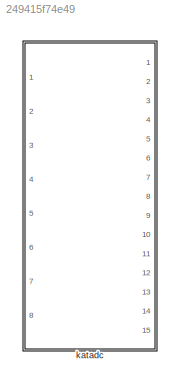
MODEL slx_249415f74e49
KIND model
CONFIG AbsTol = auto
CONFIG EnableMultiTasking = off
CONFIG FixedStep = auto
CONFIG MaxStep = auto
CONFIG MinStep = auto
CONFIG RelTol = 1e-3
CONFIG SampleTimeConstraint = Unconstrained
CONFIG Solver = VariableStepAuto
CONFIG SolverName = VariableStepAuto
CONFIG StartTime = 0.0
CONFIG StopTime = 10.0
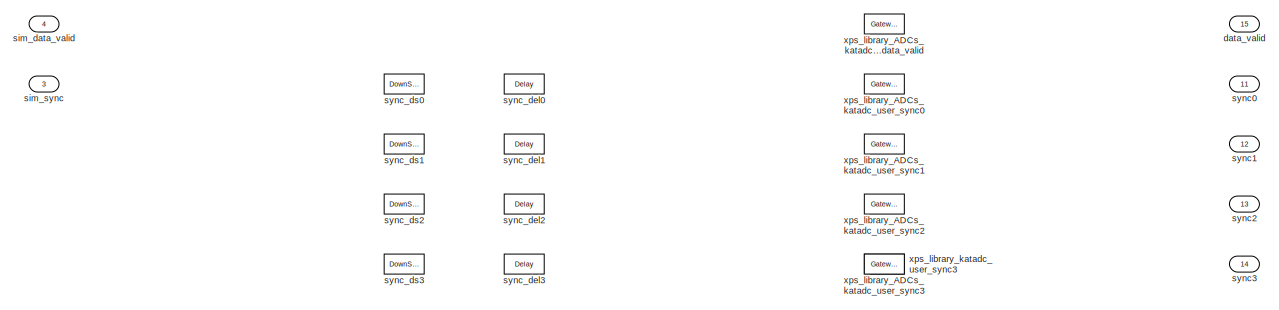
[diagram: katadc - part 1/5, full width, top band]
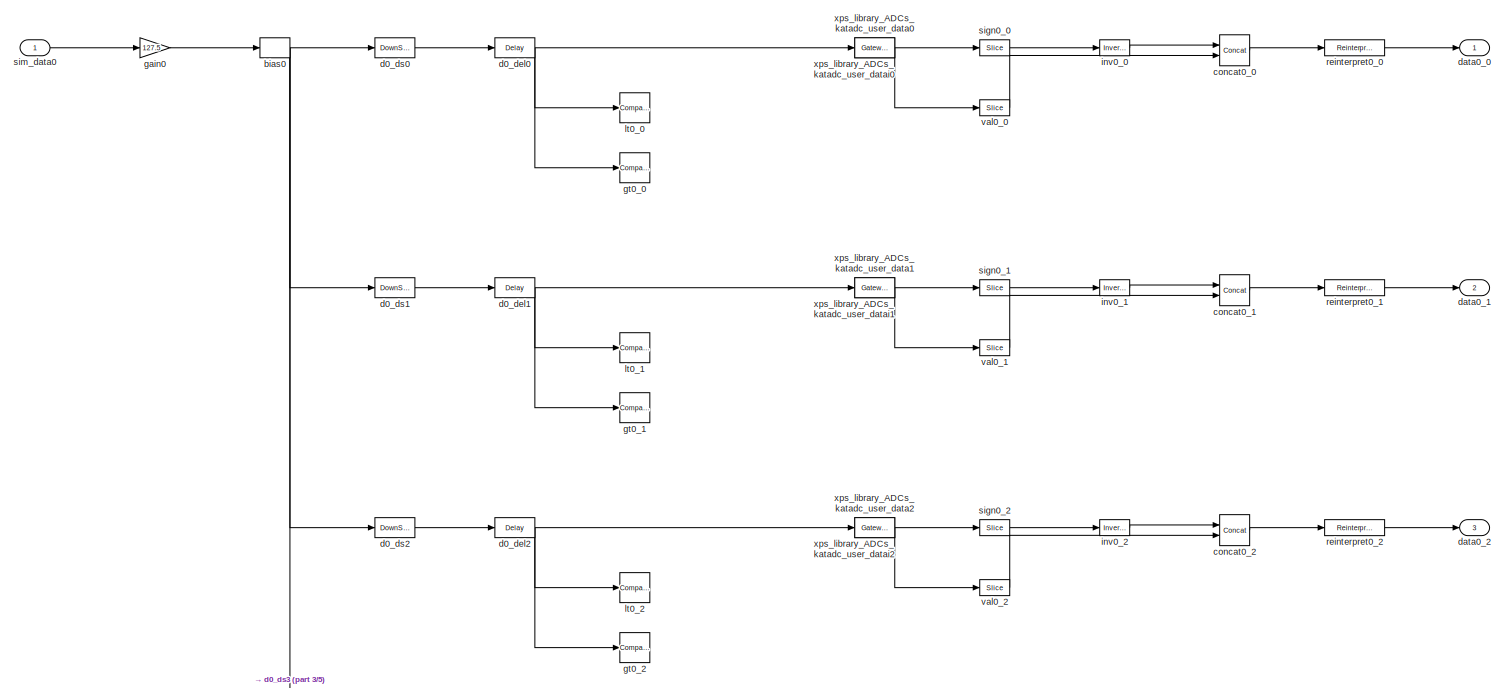
[diagram: katadc - part 2/5, full width, top band]
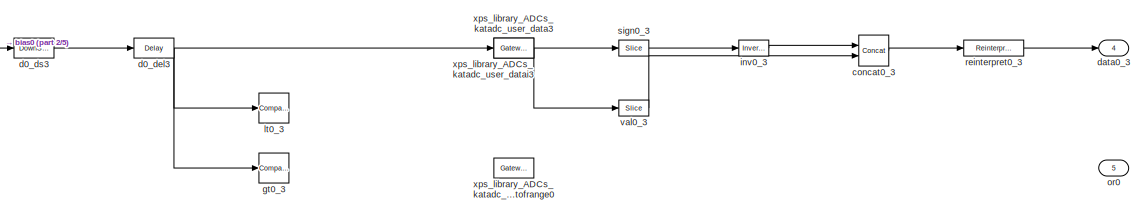
[diagram: katadc - part 3/5, full width, middle band]
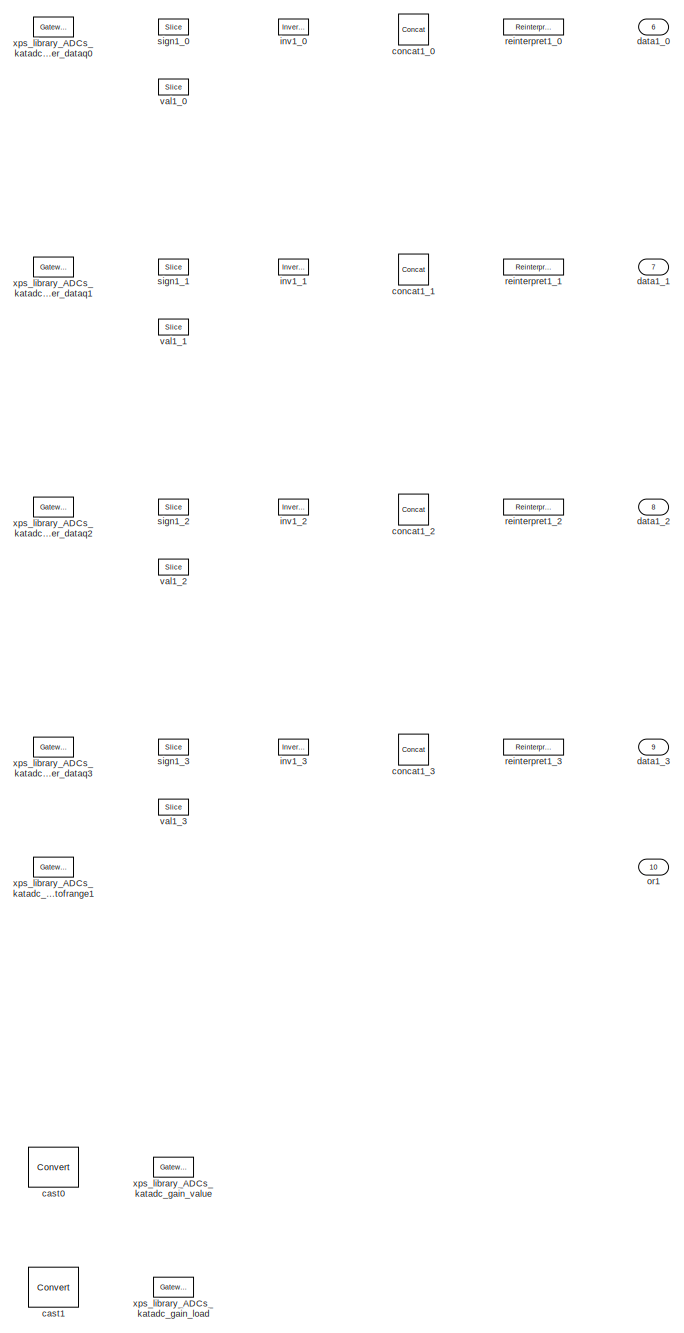
[diagram: katadc - part 4/5, bottom right region]
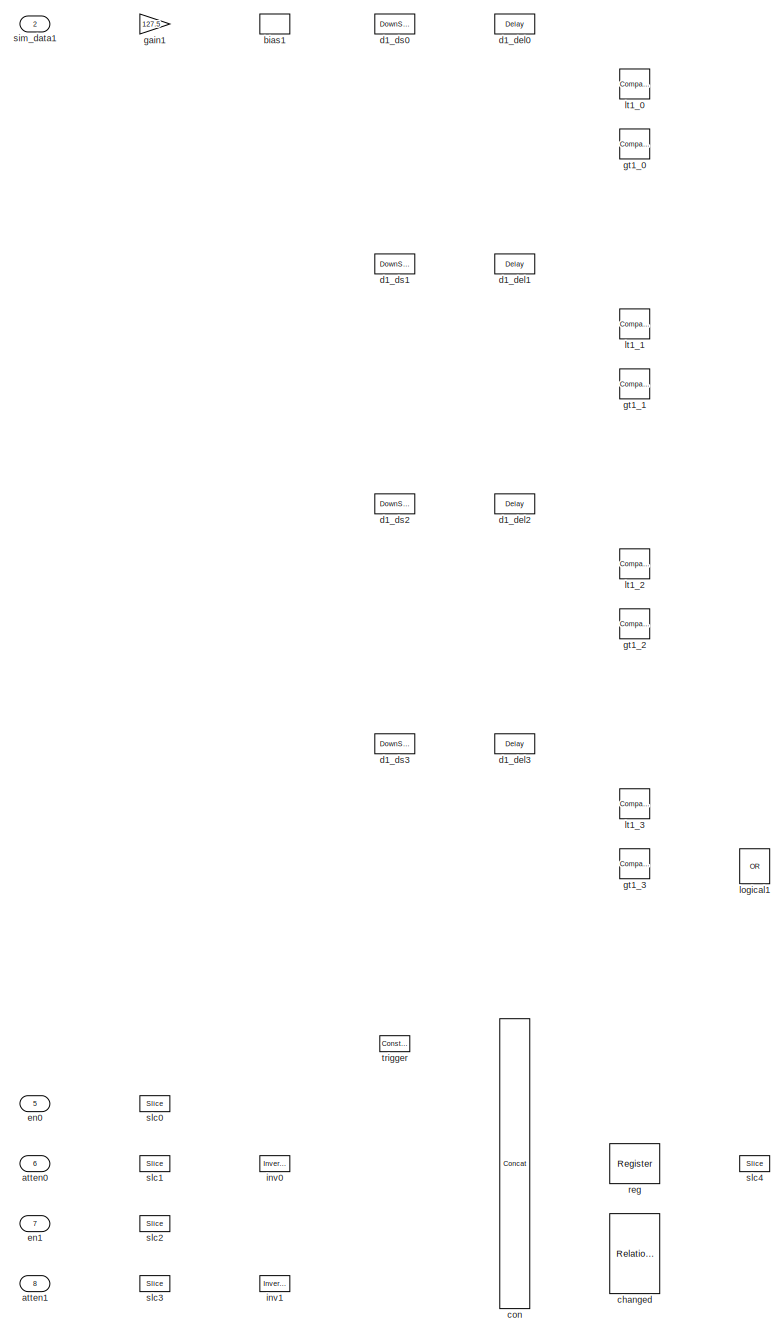
[diagram: katadc - part 5/5, bottom left region]
BLOCK [SubSystem] katadc
  Ports = [8, 15]
  RequestExecContextInheritance = off
  Tag = xps:katadc
  UserDataPersistent = on
  Variant = off
BLOCK [Inport] katadc/atten0
  IconDisplay = Port number
  Port = 6
BLOCK [Inport] katadc/atten1
  IconDisplay = Port number
  Port = 8
BLOCK [Bias] katadc/bias0
  Bias = 127.5
BLOCK [Bias] katadc/bias1
  Bias = 127.5
BLOCK [Reference] katadc/cast0  REF=xbsIndex_r4/Convert
  Ports = [1, 1]
  SourceBlock = xbsIndex_r4/Convert
  SourceType = Xilinx Type Converter Block
BLOCK [Reference] katadc/cast1  REF=xbsIndex_r4/Convert
  Ports = [1, 1]
  SourceBlock = xbsIndex_r4/Convert
  SourceType = Xilinx Type Converter Block
BLOCK [Reference] katadc/changed  REF=xbsIndex_r4/Relational
  Ports = [2, 1]
  SourceBlock = xbsIndex_r4/Relational
  SourceType = Xilinx Arithmetic Relational Operator Block
BLOCK [Reference] katadc/con  REF=xbsIndex_r4/Concat
  Ports = [5, 1]
  SourceBlock = xbsIndex_r4/Concat
  SourceType = Xilinx Bus Concatenator Block
BLOCK [Reference] katadc/concat0_0  REF=xbsIndex_r4/Concat
  Ports = [2, 1]
  SourceBlock = xbsIndex_r4/Concat
  SourceType = Xilinx Bus Concatenator Block
BLOCK [Reference] katadc/concat0_1  REF=xbsIndex_r4/Concat
  Ports = [2, 1]
  SourceBlock = xbsIndex_r4/Concat
  SourceType = Xilinx Bus Concatenator Block
BLOCK [Reference] katadc/concat0_2  REF=xbsIndex_r4/Concat
  Ports = [2, 1]
  SourceBlock = xbsIndex_r4/Concat
  SourceType = Xilinx Bus Concatenator Block
BLOCK [Reference] katadc/concat0_3  REF=xbsIndex_r4/Concat
  Ports = [2, 1]
  SourceBlock = xbsIndex_r4/Concat
  SourceType = Xilinx Bus Concatenator Block
BLOCK [Reference] katadc/concat1_0  REF=xbsIndex_r4/Concat
  Ports = [2, 1]
  SourceBlock = xbsIndex_r4/Concat
  SourceType = Xilinx Bus Concatenator Block
BLOCK [Reference] katadc/concat1_1  REF=xbsIndex_r4/Concat
  Ports = [2, 1]
  SourceBlock = xbsIndex_r4/Concat
  SourceType = Xilinx Bus Concatenator Block
BLOCK [Reference] katadc/concat1_2  REF=xbsIndex_r4/Concat
  Ports = [2, 1]
  SourceBlock = xbsIndex_r4/Concat
  SourceType = Xilinx Bus Concatenator Block
BLOCK [Reference] katadc/concat1_3  REF=xbsIndex_r4/Concat
  Ports = [2, 1]
  SourceBlock = xbsIndex_r4/Concat
  SourceType = Xilinx Bus Concatenator Block
BLOCK [Delay] katadc/d0_del0
  InputPortMap = u0
  InputProcessing = Inherited
  Ports = [1, 1]
BLOCK [Delay] katadc/d0_del1
  DelayLength = 1
  InputPortMap = u0
  InputProcessing = Inherited
  Ports = [1, 1]
BLOCK [Delay] katadc/d0_del2
  DelayLength = 1
  InputPortMap = u0
  InputProcessing = Inherited
  Ports = [1, 1]
BLOCK [Delay] katadc/d0_del3
  DelayLength = 1
  InputPortMap = u0
  InputProcessing = Inherited
  Ports = [1, 1]
BLOCK [DownSample] katadc/d0_ds0
  InputProcessing = Elements as channels (sample based)
  N = 4
  RateOptions = Allow multirate processing
BLOCK [DownSample] katadc/d0_ds1
  InputProcessing = Elements as channels (sample based)
  N = 4
  RateOptions = Allow multirate processing
  phase = 1
BLOCK [DownSample] katadc/d0_ds2
  InputProcessing = Elements as channels (sample based)
  N = 4
  RateOptions = Allow multirate processing
  phase = 2
BLOCK [DownSample] katadc/d0_ds3
  InputProcessing = Elements as channels (sample based)
  N = 4
  RateOptions = Allow multirate processing
  phase = 3
BLOCK [Delay] katadc/d1_del0
  InputPortMap = u0
  InputProcessing = Inherited
  Ports = [1, 1]
BLOCK [Delay] katadc/d1_del1
  DelayLength = 1
  InputPortMap = u0
  InputProcessing = Inherited
  Ports = [1, 1]
BLOCK [Delay] katadc/d1_del2
  DelayLength = 1
  InputPortMap = u0
  InputProcessing = Inherited
  Ports = [1, 1]
BLOCK [Delay] katadc/d1_del3
  DelayLength = 1
  InputPortMap = u0
  InputProcessing = Inherited
  Ports = [1, 1]
BLOCK [DownSample] katadc/d1_ds0
  InputProcessing = Elements as channels (sample based)
  N = 4
  RateOptions = Allow multirate processing
BLOCK [DownSample] katadc/d1_ds1
  InputProcessing = Elements as channels (sample based)
  N = 4
  RateOptions = Allow multirate processing
  phase = 1
BLOCK [DownSample] katadc/d1_ds2
  InputProcessing = Elements as channels (sample based)
  N = 4
  RateOptions = Allow multirate processing
  phase = 2
BLOCK [DownSample] katadc/d1_ds3
  InputProcessing = Elements as channels (sample based)
  N = 4
  RateOptions = Allow multirate processing
  phase = 3
BLOCK [Outport] katadc/data0_0
  IconDisplay = Port number
BLOCK [Outport] katadc/data0_1
  IconDisplay = Port number
  Port = 2
BLOCK [Outport] katadc/data0_2
  IconDisplay = Port number
  Port = 3
BLOCK [Outport] katadc/data0_3
  IconDisplay = Port number
  Port = 4
BLOCK [Outport] katadc/data1_0
  IconDisplay = Port number
  Port = 6
BLOCK [Outport] katadc/data1_1
  IconDisplay = Port number
  Port = 7
BLOCK [Outport] katadc/data1_2
  IconDisplay = Port number
  Port = 8
BLOCK [Outport] katadc/data1_3
  IconDisplay = Port number
  Port = 9
BLOCK [Outport] katadc/data_valid
  IconDisplay = Port number
  Port = 15
BLOCK [Inport] katadc/en0
  IconDisplay = Port number
  Port = 5
BLOCK [Inport] katadc/en1
  IconDisplay = Port number
  Port = 7
BLOCK [Gain] katadc/gain0
  Gain = 127.5
BLOCK [Gain] katadc/gain1
  Gain = 127.5
BLOCK [Reference] katadc/gt0_0  REF=simulink/Logic and Bit
Operations/Compare
To Constant
  Ports = [1, 1]
  SourceBlock = simulink/Logic and Bit\nOperations/Compare\nTo Constant
  SourceType = Compare To Constant
BLOCK [Reference] katadc/gt0_1  REF=simulink/Logic and Bit
Operations/Compare
To Constant
  Ports = [1, 1]
  SourceBlock = simulink/Logic and Bit\nOperations/Compare\nTo Constant
  SourceType = Compare To Constant
BLOCK [Reference] katadc/gt0_2  REF=simulink/Logic and Bit
Operations/Compare
To Constant
  Ports = [1, 1]
  SourceBlock = simulink/Logic and Bit\nOperations/Compare\nTo Constant
  SourceType = Compare To Constant
BLOCK [Reference] katadc/gt0_3  REF=simulink/Logic and Bit
Operations/Compare
To Constant
  Ports = [1, 1]
  SourceBlock = simulink/Logic and Bit\nOperations/Compare\nTo Constant
  SourceType = Compare To Constant
BLOCK [Reference] katadc/gt1_0  REF=simulink/Logic and Bit
Operations/Compare
To Constant
  Ports = [1, 1]
  SourceBlock = simulink/Logic and Bit\nOperations/Compare\nTo Constant
  SourceType = Compare To Constant
BLOCK [Reference] katadc/gt1_1  REF=simulink/Logic and Bit
Operations/Compare
To Constant
  Ports = [1, 1]
  SourceBlock = simulink/Logic and Bit\nOperations/Compare\nTo Constant
  SourceType = Compare To Constant
BLOCK [Reference] katadc/gt1_2  REF=simulink/Logic and Bit
Operations/Compare
To Constant
  Ports = [1, 1]
  SourceBlock = simulink/Logic and Bit\nOperations/Compare\nTo Constant
  SourceType = Compare To Constant
BLOCK [Reference] katadc/gt1_3  REF=simulink/Logic and Bit
Operations/Compare
To Constant
  Ports = [1, 1]
  SourceBlock = simulink/Logic and Bit\nOperations/Compare\nTo Constant
  SourceType = Compare To Constant
BLOCK [Reference] katadc/inv0  REF=xbsIndex_r4/Inverter
  Ports = [1, 1]
  SourceBlock = xbsIndex_r4/Inverter
  SourceType = Xilinx Inverter Block
BLOCK [Reference] katadc/inv0_0  REF=xbsIndex_r4/Inverter
  Ports = [1, 1]
  SourceBlock = xbsIndex_r4/Inverter
  SourceType = Xilinx Inverter Block
BLOCK [Reference] katadc/inv0_1  REF=xbsIndex_r4/Inverter
  Ports = [1, 1]
  SourceBlock = xbsIndex_r4/Inverter
  SourceType = Xilinx Inverter Block
BLOCK [Reference] katadc/inv0_2  REF=xbsIndex_r4/Inverter
  Ports = [1, 1]
  SourceBlock = xbsIndex_r4/Inverter
  SourceType = Xilinx Inverter Block
BLOCK [Reference] katadc/inv0_3  REF=xbsIndex_r4/Inverter
  Ports = [1, 1]
  SourceBlock = xbsIndex_r4/Inverter
  SourceType = Xilinx Inverter Block
BLOCK [Reference] katadc/inv1  REF=xbsIndex_r4/Inverter
  Ports = [1, 1]
  SourceBlock = xbsIndex_r4/Inverter
  SourceType = Xilinx Inverter Block
BLOCK [Reference] katadc/inv1_0  REF=xbsIndex_r4/Inverter
  Ports = [1, 1]
  SourceBlock = xbsIndex_r4/Inverter
  SourceType = Xilinx Inverter Block
BLOCK [Reference] katadc/inv1_1  REF=xbsIndex_r4/Inverter
  Ports = [1, 1]
  SourceBlock = xbsIndex_r4/Inverter
  SourceType = Xilinx Inverter Block
BLOCK [Reference] katadc/inv1_2  REF=xbsIndex_r4/Inverter
  Ports = [1, 1]
  SourceBlock = xbsIndex_r4/Inverter
  SourceType = Xilinx Inverter Block
BLOCK [Reference] katadc/inv1_3  REF=xbsIndex_r4/Inverter
  Ports = [1, 1]
  SourceBlock = xbsIndex_r4/Inverter
  SourceType = Xilinx Inverter Block
BLOCK [Logic] katadc/logical1
  Inputs = 8
  Operator = OR
  Ports = [8, 1]
BLOCK [Reference] katadc/lt0_0  REF=simulink/Logic and Bit
Operations/Compare
To Constant
  Ports = [1, 1]
  SourceBlock = simulink/Logic and Bit\nOperations/Compare\nTo Constant
  SourceType = Compare To Constant
BLOCK [Reference] katadc/lt0_1  REF=simulink/Logic and Bit
Operations/Compare
To Constant
  Ports = [1, 1]
  SourceBlock = simulink/Logic and Bit\nOperations/Compare\nTo Constant
  SourceType = Compare To Constant
BLOCK [Reference] katadc/lt0_2  REF=simulink/Logic and Bit
Operations/Compare
To Constant
  Ports = [1, 1]
  SourceBlock = simulink/Logic and Bit\nOperations/Compare\nTo Constant
  SourceType = Compare To Constant
BLOCK [Reference] katadc/lt0_3  REF=simulink/Logic and Bit
Operations/Compare
To Constant
  Ports = [1, 1]
  SourceBlock = simulink/Logic and Bit\nOperations/Compare\nTo Constant
  SourceType = Compare To Constant
BLOCK [Reference] katadc/lt1_0  REF=simulink/Logic and Bit
Operations/Compare
To Constant
  Ports = [1, 1]
  SourceBlock = simulink/Logic and Bit\nOperations/Compare\nTo Constant
  SourceType = Compare To Constant
BLOCK [Reference] katadc/lt1_1  REF=simulink/Logic and Bit
Operations/Compare
To Constant
  Ports = [1, 1]
  SourceBlock = simulink/Logic and Bit\nOperations/Compare\nTo Constant
  SourceType = Compare To Constant
BLOCK [Reference] katadc/lt1_2  REF=simulink/Logic and Bit
Operations/Compare
To Constant
  Ports = [1, 1]
  SourceBlock = simulink/Logic and Bit\nOperations/Compare\nTo Constant
  SourceType = Compare To Constant
BLOCK [Reference] katadc/lt1_3  REF=simulink/Logic and Bit
Operations/Compare
To Constant
  Ports = [1, 1]
  SourceBlock = simulink/Logic and Bit\nOperations/Compare\nTo Constant
  SourceType = Compare To Constant
BLOCK [Outport] katadc/or0
  IconDisplay = Port number
  Port = 5
BLOCK [Outport] katadc/or1
  IconDisplay = Port number
  Port = 10
BLOCK [Reference] katadc/reg  REF=xbsIndex_r4/Register
  Ports = [1, 1]
  SourceBlock = xbsIndex_r4/Register
  SourceType = Xilinx Register Block
BLOCK [Reference] katadc/reinterpret0_0  REF=xbsIndex_r4/Reinterpret
  Ports = [1, 1]
  SourceBlock = xbsIndex_r4/Reinterpret
  SourceType = Xilinx Type Reinterpreter Block
BLOCK [Reference] katadc/reinterpret0_1  REF=xbsIndex_r4/Reinterpret
  Ports = [1, 1]
  SourceBlock = xbsIndex_r4/Reinterpret
  SourceType = Xilinx Type Reinterpreter Block
BLOCK [Reference] katadc/reinterpret0_2  REF=xbsIndex_r4/Reinterpret
  Ports = [1, 1]
  SourceBlock = xbsIndex_r4/Reinterpret
  SourceType = Xilinx Type Reinterpreter Block
BLOCK [Reference] katadc/reinterpret0_3  REF=xbsIndex_r4/Reinterpret
  Ports = [1, 1]
  SourceBlock = xbsIndex_r4/Reinterpret
  SourceType = Xilinx Type Reinterpreter Block
BLOCK [Reference] katadc/reinterpret1_0  REF=xbsIndex_r4/Reinterpret
  Ports = [1, 1]
  SourceBlock = xbsIndex_r4/Reinterpret
  SourceType = Xilinx Type Reinterpreter Block
BLOCK [Reference] katadc/reinterpret1_1  REF=xbsIndex_r4/Reinterpret
  Ports = [1, 1]
  SourceBlock = xbsIndex_r4/Reinterpret
  SourceType = Xilinx Type Reinterpreter Block
BLOCK [Reference] katadc/reinterpret1_2  REF=xbsIndex_r4/Reinterpret
  Ports = [1, 1]
  SourceBlock = xbsIndex_r4/Reinterpret
  SourceType = Xilinx Type Reinterpreter Block
BLOCK [Reference] katadc/reinterpret1_3  REF=xbsIndex_r4/Reinterpret
  Ports = [1, 1]
  SourceBlock = xbsIndex_r4/Reinterpret
  SourceType = Xilinx Type Reinterpreter Block
BLOCK [Reference] katadc/sign0_0  REF=xbsIndex_r4/Slice
  Ports = [1, 1]
  SourceBlock = xbsIndex_r4/Slice
  SourceType = Xilinx Bit Slice Extractor Block
BLOCK [Reference] katadc/sign0_1  REF=xbsIndex_r4/Slice
  Ports = [1, 1]
  SourceBlock = xbsIndex_r4/Slice
  SourceType = Xilinx Bit Slice Extractor Block
BLOCK [Reference] katadc/sign0_2  REF=xbsIndex_r4/Slice
  Ports = [1, 1]
  SourceBlock = xbsIndex_r4/Slice
  SourceType = Xilinx Bit Slice Extractor Block
BLOCK [Reference] katadc/sign0_3  REF=xbsIndex_r4/Slice
  Ports = [1, 1]
  SourceBlock = xbsIndex_r4/Slice
  SourceType = Xilinx Bit Slice Extractor Block
BLOCK [Reference] katadc/sign1_0  REF=xbsIndex_r4/Slice
  Ports = [1, 1]
  SourceBlock = xbsIndex_r4/Slice
  SourceType = Xilinx Bit Slice Extractor Block
BLOCK [Reference] katadc/sign1_1  REF=xbsIndex_r4/Slice
  Ports = [1, 1]
  SourceBlock = xbsIndex_r4/Slice
  SourceType = Xilinx Bit Slice Extractor Block
BLOCK [Reference] katadc/sign1_2  REF=xbsIndex_r4/Slice
  Ports = [1, 1]
  SourceBlock = xbsIndex_r4/Slice
  SourceType = Xilinx Bit Slice Extractor Block
BLOCK [Reference] katadc/sign1_3  REF=xbsIndex_r4/Slice
  Ports = [1, 1]
  SourceBlock = xbsIndex_r4/Slice
  SourceType = Xilinx Bit Slice Extractor Block
BLOCK [Inport] katadc/sim_data0
  IconDisplay = Port number
BLOCK [Inport] katadc/sim_data1
  IconDisplay = Port number
  Port = 2
BLOCK [Inport] katadc/sim_data_valid
  IconDisplay = Port number
  Port = 4
BLOCK [Inport] katadc/sim_sync
  IconDisplay = Port number
  Port = 3
BLOCK [Reference] katadc/slc0  REF=xbsIndex_r4/Slice
  Ports = [1, 1]
  SourceBlock = xbsIndex_r4/Slice
  SourceType = Xilinx Bit Slice Extractor Block
BLOCK [Reference] katadc/slc1  REF=xbsIndex_r4/Slice
  Ports = [1, 1]
  SourceBlock = xbsIndex_r4/Slice
  SourceType = Xilinx Bit Slice Extractor Block
BLOCK [Reference] katadc/slc2  REF=xbsIndex_r4/Slice
  Ports = [1, 1]
  SourceBlock = xbsIndex_r4/Slice
  SourceType = Xilinx Bit Slice Extractor Block
BLOCK [Reference] katadc/slc3  REF=xbsIndex_r4/Slice
  Ports = [1, 1]
  SourceBlock = xbsIndex_r4/Slice
  SourceType = Xilinx Bit Slice Extractor Block
BLOCK [Reference] katadc/slc4  REF=xbsIndex_r4/Slice
  Ports = [1, 1]
  SourceBlock = xbsIndex_r4/Slice
  SourceType = Xilinx Bit Slice Extractor Block
BLOCK [Outport] katadc/sync0
  IconDisplay = Port number
  Port = 11
BLOCK [Outport] katadc/sync1
  IconDisplay = Port number
  Port = 12
BLOCK [Outport] katadc/sync2
  IconDisplay = Port number
  Port = 13
BLOCK [Outport] katadc/sync3
  IconDisplay = Port number
  Port = 14
BLOCK [Delay] katadc/sync_del0
  InputPortMap = u0
  InputProcessing = Inherited
  Ports = [1, 1]
BLOCK [Delay] katadc/sync_del1
  DelayLength = 1
  InputPortMap = u0
  InputProcessing = Inherited
  Ports = [1, 1]
BLOCK [Delay] katadc/sync_del2
  DelayLength = 1
  InputPortMap = u0
  InputProcessing = Inherited
  Ports = [1, 1]
BLOCK [Delay] katadc/sync_del3
  DelayLength = 1
  InputPortMap = u0
  InputProcessing = Inherited
  Ports = [1, 1]
BLOCK [DownSample] katadc/sync_ds0
  InputProcessing = Elements as channels (sample based)
  N = 4
  RateOptions = Allow multirate processing
BLOCK [DownSample] katadc/sync_ds1
  InputProcessing = Elements as channels (sample based)
  N = 4
  RateOptions = Allow multirate processing
  phase = 1
BLOCK [DownSample] katadc/sync_ds2
  InputProcessing = Elements as channels (sample based)
  N = 4
  RateOptions = Allow multirate processing
  phase = 2
BLOCK [DownSample] katadc/sync_ds3
  InputProcessing = Elements as channels (sample based)
  N = 4
  RateOptions = Allow multirate processing
  phase = 3
BLOCK [Reference] katadc/trigger  REF=xbsIndex_r4/Constant
  Ports = [0, 1]
  SourceBlock = xbsIndex_r4/Constant
  SourceType = Xilinx Constant Block Block
BLOCK [Reference] katadc/val0_0  REF=xbsIndex_r4/Slice
  Ports = [1, 1]
  SourceBlock = xbsIndex_r4/Slice
  SourceType = Xilinx Bit Slice Extractor Block
BLOCK [Reference] katadc/val0_1  REF=xbsIndex_r4/Slice
  Ports = [1, 1]
  SourceBlock = xbsIndex_r4/Slice
  SourceType = Xilinx Bit Slice Extractor Block
BLOCK [Reference] katadc/val0_2  REF=xbsIndex_r4/Slice
  Ports = [1, 1]
  SourceBlock = xbsIndex_r4/Slice
  SourceType = Xilinx Bit Slice Extractor Block
BLOCK [Reference] katadc/val0_3  REF=xbsIndex_r4/Slice
  Ports = [1, 1]
  SourceBlock = xbsIndex_r4/Slice
  SourceType = Xilinx Bit Slice Extractor Block
BLOCK [Reference] katadc/val1_0  REF=xbsIndex_r4/Slice
  Ports = [1, 1]
  SourceBlock = xbsIndex_r4/Slice
  SourceType = Xilinx Bit Slice Extractor Block
BLOCK [Reference] katadc/val1_1  REF=xbsIndex_r4/Slice
  Ports = [1, 1]
  SourceBlock = xbsIndex_r4/Slice
  SourceType = Xilinx Bit Slice Extractor Block
BLOCK [Reference] katadc/val1_2  REF=xbsIndex_r4/Slice
  Ports = [1, 1]
  SourceBlock = xbsIndex_r4/Slice
  SourceType = Xilinx Bit Slice Extractor Block
BLOCK [Reference] katadc/val1_3  REF=xbsIndex_r4/Slice
  Ports = [1, 1]
  SourceBlock = xbsIndex_r4/Slice
  SourceType = Xilinx Bit Slice Extractor Block
BLOCK [Reference] katadc/xps_library_ADCs_katadc_gain_load  REF=xbsIndex_r4/Gateway Out
  Ports = [1, 1]
  SourceBlock = xbsIndex_r4/Gateway Out
  SourceType = Xilinx Gateway Out Block
BLOCK [Reference] katadc/xps_library_ADCs_katadc_gain_value  REF=xbsIndex_r4/Gateway Out
  Ports = [1, 1]
  SourceBlock = xbsIndex_r4/Gateway Out
  SourceType = Xilinx Gateway Out Block
BLOCK [Reference] katadc/xps_library_ADCs_katadc_user_data0  REF=xbsIndex_r4/Gateway In
  Ports = [1, 1]
  SourceBlock = xbsIndex_r4/Gateway In
  SourceType = Xilinx Gateway In Block
BLOCK [Reference] katadc/xps_library_ADCs_katadc_user_data1  REF=xbsIndex_r4/Gateway In
  Ports = [1, 1]
  SourceBlock = xbsIndex_r4/Gateway In
  SourceType = Xilinx Gateway In Block
BLOCK [Reference] katadc/xps_library_ADCs_katadc_user_data2  REF=xbsIndex_r4/Gateway In
  Ports = [1, 1]
  SourceBlock = xbsIndex_r4/Gateway In
  SourceType = Xilinx Gateway In Block
BLOCK [Reference] katadc/xps_library_ADCs_katadc_user_data3  REF=xbsIndex_r4/Gateway In
  Ports = [1, 1]
  SourceBlock = xbsIndex_r4/Gateway In
  SourceType = Xilinx Gateway In Block
BLOCK [Reference] katadc/xps_library_ADCs_katadc_user_data_valid  REF=xbsIndex_r4/Gateway In
  Ports = [1, 1]
  SourceBlock = xbsIndex_r4/Gateway In
  SourceType = Xilinx Gateway In Block
BLOCK [Reference] katadc/xps_library_ADCs_katadc_user_datai0  REF=xbsIndex_r4/Gateway In
  Ports = [1, 1]
  SourceBlock = xbsIndex_r4/Gateway In
  SourceType = Xilinx Gateway In Block
BLOCK [Reference] katadc/xps_library_ADCs_katadc_user_datai1  REF=xbsIndex_r4/Gateway In
  Ports = [1, 1]
  SourceBlock = xbsIndex_r4/Gateway In
  SourceType = Xilinx Gateway In Block
BLOCK [Reference] katadc/xps_library_ADCs_katadc_user_datai2  REF=xbsIndex_r4/Gateway In
  Ports = [1, 1]
  SourceBlock = xbsIndex_r4/Gateway In
  SourceType = Xilinx Gateway In Block
BLOCK [Reference] katadc/xps_library_ADCs_katadc_user_datai3  REF=xbsIndex_r4/Gateway In
  Ports = [1, 1]
  SourceBlock = xbsIndex_r4/Gateway In
  SourceType = Xilinx Gateway In Block
BLOCK [Reference] katadc/xps_library_ADCs_katadc_user_dataq0  REF=xbsIndex_r4/Gateway In
  Ports = [1, 1]
  SourceBlock = xbsIndex_r4/Gateway In
  SourceType = Xilinx Gateway In Block
BLOCK [Reference] katadc/xps_library_ADCs_katadc_user_dataq1  REF=xbsIndex_r4/Gateway In
  Ports = [1, 1]
  SourceBlock = xbsIndex_r4/Gateway In
  SourceType = Xilinx Gateway In Block
BLOCK [Reference] katadc/xps_library_ADCs_katadc_user_dataq2  REF=xbsIndex_r4/Gateway In
  Ports = [1, 1]
  SourceBlock = xbsIndex_r4/Gateway In
  SourceType = Xilinx Gateway In Block
BLOCK [Reference] katadc/xps_library_ADCs_katadc_user_dataq3  REF=xbsIndex_r4/Gateway In
  Ports = [1, 1]
  SourceBlock = xbsIndex_r4/Gateway In
  SourceType = Xilinx Gateway In Block
BLOCK [Reference] katadc/xps_library_ADCs_katadc_user_outofrange0  REF=xbsIndex_r4/Gateway In
  Ports = [1, 1]
  SourceBlock = xbsIndex_r4/Gateway In
  SourceType = Xilinx Gateway In Block
BLOCK [Reference] katadc/xps_library_ADCs_katadc_user_outofrange1  REF=xbsIndex_r4/Gateway In
  Ports = [1, 1]
  SourceBlock = xbsIndex_r4/Gateway In
  SourceType = Xilinx Gateway In Block
BLOCK [Reference] katadc/xps_library_ADCs_katadc_user_sync0  REF=xbsIndex_r4/Gateway In
  Ports = [1, 1]
  SourceBlock = xbsIndex_r4/Gateway In
  SourceType = Xilinx Gateway In Block
BLOCK [Reference] katadc/xps_library_ADCs_katadc_user_sync1  REF=xbsIndex_r4/Gateway In
  Ports = [1, 1]
  SourceBlock = xbsIndex_r4/Gateway In
  SourceType = Xilinx Gateway In Block
BLOCK [Reference] katadc/xps_library_ADCs_katadc_user_sync2  REF=xbsIndex_r4/Gateway In
  Ports = [1, 1]
  SourceBlock = xbsIndex_r4/Gateway In
  SourceType = Xilinx Gateway In Block
BLOCK [Reference] katadc/xps_library_ADCs_katadc_user_sync3  REF=xbsIndex_r4/Gateway In
  Ports = [1, 1]
  SourceBlock = xbsIndex_r4/Gateway In
  SourceType = Xilinx Gateway In Block
BLOCK [Reference] katadc/xps_library_katadc_user_sync3  REF=xbsIndex_r4/Gateway In
  Ports = [1, 1]
  SourceBlock = xbsIndex_r4/Gateway In
  SourceType = Xilinx Gateway In Block
NET katadc/bias0:1 -> katadc/d0_ds0:1, katadc/d0_ds1:1, katadc/d0_ds2:1, katadc/d0_ds3:1
LINE katadc/concat0_0:1 -> katadc/reinterpret0_0:1
LINE katadc/concat0_1:1 -> katadc/reinterpret0_1:1
LINE katadc/concat0_2:1 -> katadc/reinterpret0_2:1
LINE katadc/concat0_3:1 -> katadc/reinterpret0_3:1
NET katadc/d0_del0:1 -> katadc/gt0_0:1, katadc/lt0_0:1, katadc/xps_library_ADCs_katadc_user_data0:1
NET katadc/d0_del1:1 -> katadc/gt0_1:1, katadc/lt0_1:1, katadc/xps_library_ADCs_katadc_user_data1:1
NET katadc/d0_del2:1 -> katadc/gt0_2:1, katadc/lt0_2:1, katadc/xps_library_ADCs_katadc_user_data2:1
NET katadc/d0_del3:1 -> katadc/gt0_3:1, katadc/lt0_3:1, katadc/xps_library_ADCs_katadc_user_data3:1
LINE katadc/d0_ds0:1 -> katadc/d0_del0:1
LINE katadc/d0_ds1:1 -> katadc/d0_del1:1
LINE katadc/d0_ds2:1 -> katadc/d0_del2:1
LINE katadc/d0_ds3:1 -> katadc/d0_del3:1
LINE katadc/gain0:1 -> katadc/bias0:1
LINE katadc/inv0_0:1 -> katadc/concat0_0:1
LINE katadc/inv0_1:1 -> katadc/concat0_1:1
LINE katadc/inv0_2:1 -> katadc/concat0_2:1
LINE katadc/inv0_3:1 -> katadc/concat0_3:1
LINE katadc/reinterpret0_0:1 -> katadc/data0_0:1
LINE katadc/reinterpret0_1:1 -> katadc/data0_1:1
LINE katadc/reinterpret0_2:1 -> katadc/data0_2:1
LINE katadc/reinterpret0_3:1 -> katadc/data0_3:1
LINE katadc/sign0_0:1 -> katadc/inv0_0:1
LINE katadc/sign0_1:1 -> katadc/inv0_1:1
LINE katadc/sign0_2:1 -> katadc/inv0_2:1
LINE katadc/sign0_3:1 -> katadc/inv0_3:1
LINE katadc/sim_data0:1 -> katadc/gain0:1
LINE katadc/val0_0:1 -> katadc/concat0_0:2
LINE katadc/val0_1:1 -> katadc/concat0_1:2
LINE katadc/val0_2:1 -> katadc/concat0_2:2
LINE katadc/val0_3:1 -> katadc/concat0_3:2
NET katadc/xps_library_ADCs_katadc_user_data0:1 -> katadc/sign0_0:1, katadc/val0_0:1
NET katadc/xps_library_ADCs_katadc_user_data1:1 -> katadc/sign0_1:1, katadc/val0_1:1
NET katadc/xps_library_ADCs_katadc_user_data2:1 -> katadc/sign0_2:1, katadc/val0_2:1
NET katadc/xps_library_ADCs_katadc_user_data3:1 -> katadc/sign0_3:1, katadc/val0_3:1
note: NET lines group one-source signal fan-out (src -> all destinations, sorted); 1:1 wires keep LINE
